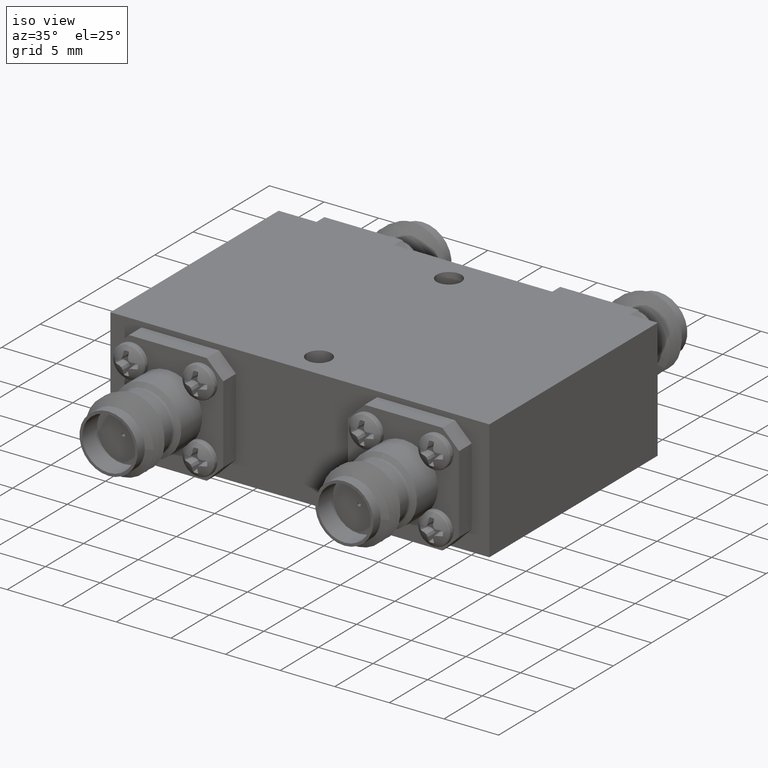
[diagram: clean part render]
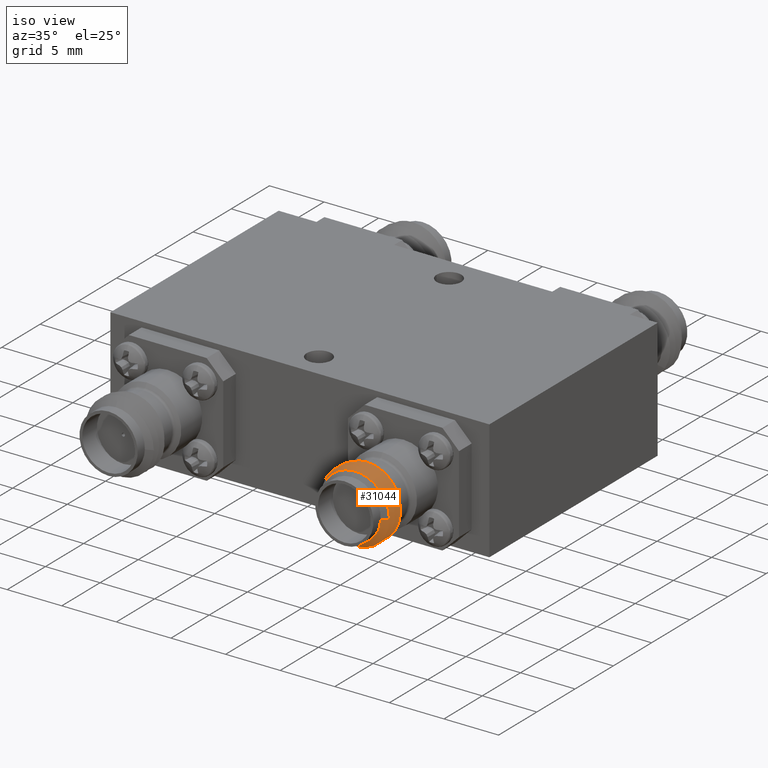
[diagram: same view with one face highlighted and labeled with its STEP entity id]
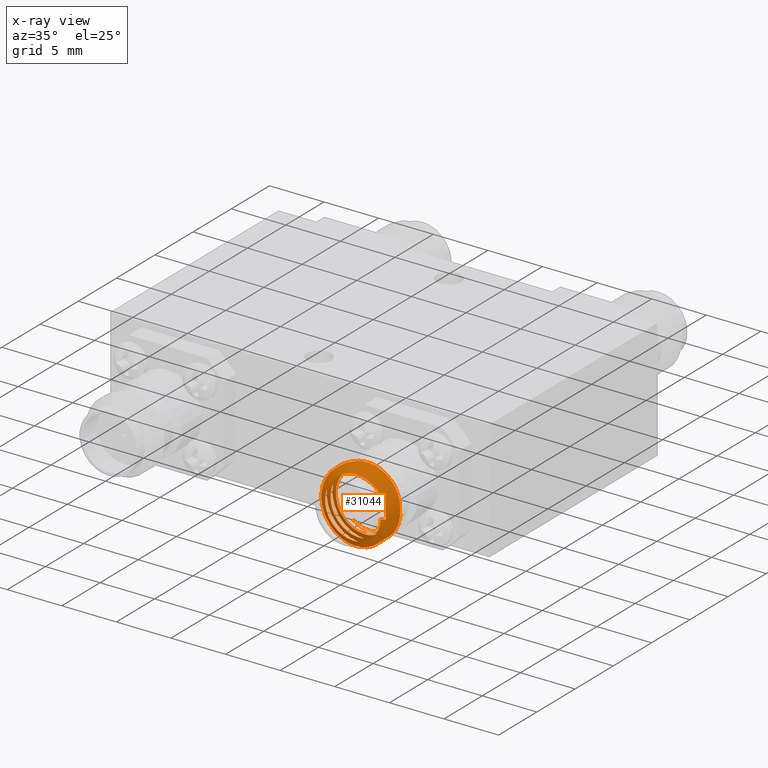
[diagram: x-ray of the same camera — body ghosted, the highlighted face saturated]
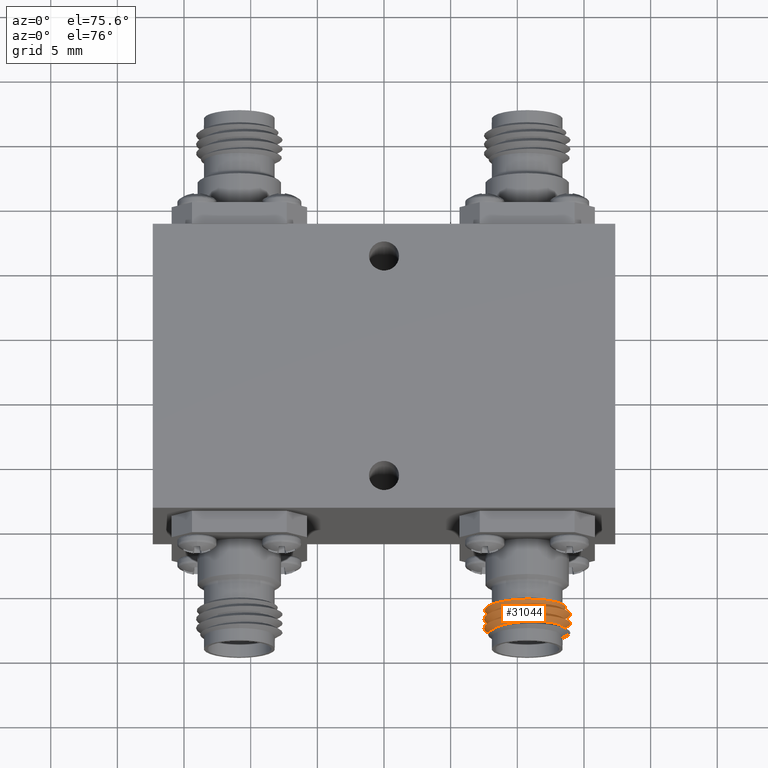
[diagram: same view with one face highlighted and labeled with its STEP entity id]
A machine part, iso view. The second image highlights one B-rep face of the part: STEP entity #31044.
The next image is the same camera in x-ray: the body ghosted, the highlighted face saturated — about 0% of this face is hidden behind the body in this view.
A second angle (auxiliary view) of the same face is appended — the face is thin or edge-on in the first view.
In plain terms, the highlighted face is a freeform B-spline surface patch.
Its self-contained STEP definition (entity closure, byte-faithful):
#55 = CARTESIAN_POINT ( 'NONE',  ( 0.4090109800733353100, -0.7082203525665050600, 0.1115354330708660700 ) ) ;
#1073 = CARTESIAN_POINT ( 'NONE',  ( 0.2991960447861482000, -0.7175615941890978200, 0.1834069502855213400 ) ) ;
#1136 = CARTESIAN_POINT ( 'NONE',  ( 0.3845811687613657800, -0.6828393719668756100, 0.3593009920750886400 ) ) ;
#1174 = EDGE_CURVE ( 'NONE', #16966, #24991, #51171, .T. ) ;
#1175 = ORIENTED_EDGE ( 'NONE', *, *, #46614, .T. ) ;
#1761 = CARTESIAN_POINT ( 'NONE',  ( 0.3956583547328388900, -0.7910258355656445400, 0.1151132993379510400 ) ) ;
#1958 = CARTESIAN_POINT ( 'NONE',  ( 0.3031208959078919900, -0.6893084291428547300, 0.2516327524470650100 ) ) ;
#2086 = EDGE_CURVE ( 'NONE', #5817, #60886, #52104, .T. ) ;
#2549 = ORIENTED_EDGE ( 'NONE', *, *, #47065, .F. ) ;
#2618 = EDGE_CURVE ( 'NONE', #53281, #70374, #48130, .T. ) ;
#2954 = CARTESIAN_POINT ( 'NONE',  ( 0.4302462033737201000, -0.6863100547194084200, 0.3359689577264929900 ) ) ;
#3264 = CARTESIAN_POINT ( 'NONE',  ( 0.5399468380942604700, -0.7701925022323111700, 0.1851549552953935000 ) ) ;
#3471 = CARTESIAN_POINT ( 'NONE',  ( 0.5357627844557846200, -0.6833936519521796000, 0.2361727180647525700 ) ) ;
#3515 = CARTESIAN_POINT ( 'NONE',  ( 0.5464732465524340100, -0.7592282608557645600, 0.2496639158562108400 ) ) ;
#3696 = CARTESIAN_POINT ( 'NONE',  ( 0.3793423982189531000, -0.7523280669959941900, 0.3215354330708660200 ) ) ;
#3792 = CARTESIAN_POINT ( 'NONE',  ( 0.4542144509453235900, -0.7655628726026816300, 0.09942306045021474800 ) ) ;
#4074 = CARTESIAN_POINT ( 'NONE',  ( 0.4542144509453235900, -0.6822295392693482600, 0.09942306045021474800 ) ) ;
#4297 = CARTESIAN_POINT ( 'NONE',  ( 0.4376646719017464600, -0.6798121258215007500, 0.1083566514104201700 ) ) ;
#4346 = VERTEX_POINT ( 'NONE', #24486 ) ;
#4347 = CARTESIAN_POINT ( 'NONE',  ( 0.2800693063321855200, -0.7708023349298386300, 0.2547897297876325900 ) ) ;
#4532 = EDGE_CURVE ( 'NONE', #16966, #48274, #55350, .T. ) ;
#5447 = ORIENTED_EDGE ( 'NONE', *, *, #74844, .T. ) ;
#5694 = CARTESIAN_POINT ( 'NONE',  ( 0.3323252375467756200, -0.7129319645594683900, 0.3070453609313607600 ) ) ;
#5817 = VERTEX_POINT ( 'NONE', #60721 ) ;
#5968 = CARTESIAN_POINT ( 'NONE',  ( 0.4610881225772164900, -0.6967282608557646700, 0.07376987406664334300 ) ) ;
#6299 = CARTESIAN_POINT ( 'NONE',  ( 0.5464732465524340100, -0.7036727053002090900, 0.2496639158562108400 ) ) ;
#6567 = CARTESIAN_POINT ( 'NONE',  ( 0.3183227832401108700, -0.6643208534483572300, 0.1120241707834101100 ) ) ;
#6620 = B_SPLINE_CURVE_WITH_KNOTS ( 'NONE', 3,
 ( #68225, #35723, #12007, #42281, #67960, #48509, #49320, #55626, #17725, #55368 ),
 .UNSPECIFIED., .F., .F.,
 ( 4, 2, 2, 2, 4 ),
 ( 0.01584325104450797300, 0.01631522288888693400, 0.01678719473326589800, 0.01725916657764486200, 0.01773113842202382300 ),
 .UNSPECIFIED. ) ;
#7295 =( BOUNDED_CURVE ( )  B_SPLINE_CURVE ( 2, ( #54451, #72783, #41625, #35617, #47347, #60187, #17073, #35343, #54184 ),
 .UNSPECIFIED., .F., .F. ) 
 B_SPLINE_CURVE_WITH_KNOTS ( ( 3, 2, 2, 2, 3 ),
 ( 0.5248554726565972700, 0.5333333333333333300, 0.5666666666666666500, 0.5999999999999999800, 0.6248554726565971300 ),
 .UNSPECIFIED. ) 
 CURVE ( )  GEOMETRIC_REPRESENTATION_ITEM ( )  RATIONAL_B_SPLINE_CURVE ( ( 0.9491836739122827500, 0.9659254611718750500, 1.000000000000000000, 0.8660254037844387100, 1.000000000000000000, 0.8660254037844387100, 1.000000000000000000, 0.9000999426125641000, 0.9491836739122823100 ) ) 
 REPRESENTATION_ITEM ( '' )  );
#7845 = CARTESIAN_POINT ( 'NONE',  ( 0.4090109800733353100, -0.7359981303442828500, 0.1115354330708660700 ) ) ;
#8363 = CARTESIAN_POINT ( 'NONE',  ( 0.4228346456692911900, -0.6795040855815611700, 0.1088901927567706000 ) ) ;
#8892 = CARTESIAN_POINT ( 'NONE',  ( 0.4663268931196292200, -0.7662169558848830300, 0.1115354330708661800 ) ) ;
#9215 = CARTESIAN_POINT ( 'NONE',  ( 0.5136952258206402000, -0.6816078304381036900, 0.1518472352687492700 ) ) ;
#9436 = CARTESIAN_POINT ( 'NONE',  ( 0.4228346456692909100, -0.7504757602334200000, 0.3215354330708661300 ) ) ;
#9528 = CARTESIAN_POINT ( 'NONE',  ( 0.4970806445197921100, -0.7123221318619408200, 0.1422890078728041000 ) ) ;
#9745 = CARTESIAN_POINT ( 'NONE',  ( 0.5365609499033876500, -0.6832556676292478300, 0.2288077795482604300 ) ) ;
#9797 = CARTESIAN_POINT ( 'NONE',  ( 0.4610881225772164300, -0.7522838164113200300, 0.07376987406664352300 ) ) ;
#9961 = EDGE_LOOP ( 'NONE', ( #26629, #73972, #15266, #78333, #75722, #66923, #70219, #5447, #1175, #60197, #2549, #41418, #24442 ) ) ;
#10007 = CARTESIAN_POINT ( 'NONE',  ( 0.5360019312078235800, -0.6828158327080139400, 0.2063673380078975000 ) ) ;
#10062 = CARTESIAN_POINT ( 'NONE',  ( 0.4542144509453235900, -0.7100073170471261600, 0.09942306045021474800 ) ) ;
#10320 = CARTESIAN_POINT ( 'NONE',  ( 0.3214123558823379100, -0.6752850948249037300, 0.1893597245360130200 ) ) ;
#10337 = CARTESIAN_POINT ( 'NONE',  ( 0.3840194886702671400, -0.6871971364338394000, 0.3312450125655904700 ) ) ;
#10585 = CARTESIAN_POINT ( 'NONE',  ( 0.3845811687613657800, -0.7661727053002089800, 0.3593009920750886400 ) ) ;
#11158 = CARTESIAN_POINT ( 'NONE',  ( 0.5482002354201147600, -0.7561426780691572500, 0.1608814866829417200 ) ) ;
#11231 = CARTESIAN_POINT ( 'NONE',  ( 0.5277024049750794800, -0.7711648769093174500, 0.2112673159325286500 ) ) ;
#11340 = CARTESIAN_POINT ( 'NONE',  ( 0.4926275787050082300, -0.6810522431930918800, 0.1307666803959265100 ) ) ;
#11700 =( BOUNDED_SURFACE ( )  B_SPLINE_SURFACE ( 1, 2, ( 
 ( #75962, #76245, #1761, #38787, #26521, #76518, #39064, #64182, #40586, #34573, #72531, #3264, #72812, #3792, #28840, #35369, #35106, #53947, #59423, #54214, #16836, #78818, #73078, #66228, #16313, #29101, #53148, #29369, #28297, #16558, #59957, #46831, #28557, #15780, #72274, #47376, #9528, #10062, #41115, #22060, #41386, #22846, #65697, #60480, #79085, #53677, #41656, #66786, #34845, #4074, #22592, #47633, #10320, #60218, #23120 ),
 ( #16040, #66505, #72002, #78302, #78544, #4347, #47904, #10585, #35645, #40849, #3515, #47097, #59691, #9797, #53408, #22324, #65966, #29624, #43251, #55805, #63994, #47849, #12678, #56294, #28311, #62389, #51625, #56666, #1073, #20088, #38159, #69577, #31899, #13367, #6299, #63285, #74798, #62738, #62461, #63559, #25908, #44717, #31079, #1136, #56446, #19914, #69301, #75869, #50162, #56978, #44174, #6567, #56183, #12836, #13101 ) ),
 .UNSPECIFIED., .F., .F., .T. ) 
 B_SPLINE_SURFACE_WITH_KNOTS ( ( 2, 2 ),
 ( 3, 2, 2, 2, 2, 2, 2, 2, 2, 2, 2, 2, 2, 2, 2, 2, 2, 2, 2, 2, 2, 2, 2, 2, 2, 2, 2, 3 ),
 ( 0.0000000000000000000, 1.000000000000000000 ),
 ( 0.0000000000000000000, 0.03333333333333333300, 0.06666666666666666600, 0.1000000000000000100, 0.1333333333333333300, 0.1666666666666666600, 0.2000000000000000100, 0.2333333333333333400, 0.2666666666666666600, 0.2999999999999999900, 0.3333333333333333100, 0.3666666666666666400, 0.4000000000000000200, 0.4333333333333333500, 0.4666666666666666700, 0.5000000000000000000, 0.5333333333333333300, 0.5666666666666666500, 0.5999999999999999800, 0.6333333333333333000, 0.6666666666666666300, 0.6999999999999999600, 0.7333333333333332800, 0.7666666666666667200, 0.8000000000000000400, 0.8333333333333333700, 0.8666666666666667000, 0.8785039370014849900 ),
 .UNSPECIFIED. ) 
 GEOMETRIC_REPRESENTATION_ITEM ( )  RATIONAL_B_SPLINE_SURFACE ( (
 ( 1.000000000000000000, 0.8660254037844387100, 1.000000000000000000, 0.8660254037844387100, 1.000000000000000000, 0.8660254037844387100, 1.000000000000000000, 0.8660254037844387100, 1.000000000000000000, 0.8660254037844387100, 1.000000000000000000, 0.8660254037844387100, 1.000000000000000000, 0.8660254037844387100, 1.000000000000000000, 0.8660254037844387100, 1.000000000000000000, 0.8660254037844387100, 1.000000000000000000, 0.8660254037844387100, 1.000000000000000000, 0.8660254037844387100, 1.000000000000000000, 0.8660254037844387100, 1.000000000000000000, 0.8660254037844387100, 1.000000000000000000, 0.8660254037844387100, 1.000000000000000000, 0.8660254037844387100, 1.000000000000000000, 0.8660254037844387100, 1.000000000000000000, 0.8660254037844387100, 1.000000000000000000, 0.8660254037844387100, 1.000000000000000000, 0.8660254037844387100, 1.000000000000000000, 0.8660254037844387100, 1.000000000000000000, 0.8660254037844387100, 1.000000000000000000, 0.8660254037844387100, 1.000000000000000000, 0.8660254037844387100, 1.000000000000000000, 0.8660254037844387100, 1.000000000000000000, 0.8660254037844387100, 1.000000000000000000, 0.8660254037844387100, 1.000000000000000000, 0.9524231945979483300, 0.9386371596285643100),
 ( 1.000000000000000000, 0.8660254037844387100, 1.000000000000000000, 0.8660254037844387100, 1.000000000000000000, 0.8660254037844387100, 1.000000000000000000, 0.8660254037844387100, 1.000000000000000000, 0.8660254037844387100, 1.000000000000000000, 0.8660254037844387100, 1.000000000000000000, 0.8660254037844387100, 1.000000000000000000, 0.8660254037844387100, 1.000000000000000000, 0.8660254037844387100, 1.000000000000000000, 0.8660254037844387100, 1.000000000000000000, 0.8660254037844387100, 1.000000000000000000, 0.8660254037844387100, 1.000000000000000000, 0.8660254037844387100, 1.000000000000000000, 0.8660254037844387100, 1.000000000000000000, 0.8660254037844387100, 1.000000000000000000, 0.8660254037844387100, 1.000000000000000000, 0.8660254037844387100, 1.000000000000000000, 0.8660254037844387100, 1.000000000000000000, 0.8660254037844387100, 1.000000000000000000, 0.8660254037844387100, 1.000000000000000000, 0.8660254037844387100, 1.000000000000000000, 0.8660254037844387100, 1.000000000000000000, 0.8660254037844387100, 1.000000000000000000, 0.8660254037844387100, 1.000000000000000000, 0.8660254037844387100, 1.000000000000000000, 0.8660254037844387100, 1.000000000000000000, 0.9524231945979483300, 0.9386371596285643100) ) ) 
 REPRESENTATION_ITEM ( '' )  SURFACE ( )  );
#12007 = CARTESIAN_POINT ( 'NONE',  ( 0.4103908191786711500, -0.6792478074147823000, 0.1098753014152097400 ) ) ;
#12678 = CARTESIAN_POINT ( 'NONE',  ( 0.5464732465524340100, -0.7314504830779867700, 0.2496639158562108400 ) ) ;
#12836 = CARTESIAN_POINT ( 'NONE',  ( 0.2930199435203966800, -0.6612585755602028400, 0.2064567387215896200 ) ) ;
#13101 = CARTESIAN_POINT ( 'NONE',  ( 0.2955643502271218500, -0.6604058231542150300, 0.2301835793941928200 ) ) ;
#13367 = CARTESIAN_POINT ( 'NONE',  ( 0.5273465080984713900, -0.7059875201150238600, 0.3210466953583220900 ) ) ;
#13563 =( BOUNDED_CURVE ( )  B_SPLINE_CURVE ( 2, ( #60074, #65292, #65553, #41506, #34175, #46690, #53800, #16161, #28163 ),
 .UNSPECIFIED., .F., .F. ) 
 B_SPLINE_CURVE_WITH_KNOTS ( ( 3, 2, 2, 2, 3 ),
 ( 0.7248554726565972200, 0.7333333333333332800, 0.7666666666666667200, 0.8000000000000000400, 0.8248554726565972000 ),
 .UNSPECIFIED. ) 
 CURVE ( )  GEOMETRIC_REPRESENTATION_ITEM ( )  RATIONAL_B_SPLINE_CURVE ( ( 0.9491836739122827500, 0.9659254611718750500, 1.000000000000000000, 0.8660254037844387100, 1.000000000000000000, 0.8660254037844387100, 1.000000000000000000, 0.9000999426125641000, 0.9491836739122823100 ) ) 
 REPRESENTATION_ITEM ( '' )  );
#14103 = CARTESIAN_POINT ( 'NONE',  ( 0.3371022585203541900, -0.7331554651952740800, 0.1308035382256873800 ) ) ;
#14209 = CARTESIAN_POINT ( 'NONE',  ( 0.3175213573931962000, -0.6886869665098999100, 0.2821124938331390800 ) ) ;
#14472 = CARTESIAN_POINT ( 'NONE',  ( 0.3787041665657955300, -0.6873035976021704100, 0.3295067275842557500 ) ) ;
#14620 = CARTESIAN_POINT ( 'NONE',  ( 0.5085670328182280200, -0.7470443540841631400, 0.3022673279160448300 ) ) ;
#15213 = CARTESIAN_POINT ( 'NONE',  ( 0.4228346456687282500, -0.6864485300260163600, 0.3362088039930968800 ) ) ;
#15266 = ORIENTED_EDGE ( 'NONE', *, *, #33947, .T. ) ;
#15356 = FACE_OUTER_BOUND ( 'NONE', #9961, .T. ) ;
#15466 = CARTESIAN_POINT ( 'NONE',  ( 0.4983665489984913100, -0.6811878513921383300, 0.1354534948325968900 ) ) ;
#15780 = CARTESIAN_POINT ( 'NONE',  ( 0.5085670328182280200, -0.7192665763063852400, 0.3022673279160447700 ) ) ;
#15991 = CARTESIAN_POINT ( 'NONE',  ( 0.5219073847737004700, -0.6819026420548615100, 0.1642026917239471400 ) ) ;
#16040 = CARTESIAN_POINT ( 'NONE',  ( 0.5133440537918065900, -0.7823764090039127000, 0.1260255052103714800 ) ) ;
#16161 = CARTESIAN_POINT ( 'NONE',  ( 0.4663268931196292200, -0.6828836225515497700, 0.1115354330708661800 ) ) ;
#16258 = CARTESIAN_POINT ( 'NONE',  ( 0.4924022912744668900, -0.6850978250194910100, 0.3121760042178716200 ) ) ;
#16313 = CARTESIAN_POINT ( 'NONE',  ( 0.4970806445197921100, -0.7400999096397185000, 0.1422890078728041000 ) ) ;
#16387 = CARTESIAN_POINT ( 'NONE',  ( 0.4228346456692911900, -0.7643646491223089500, 0.1115354330708660900 ) ) ;
#16411 = CARTESIAN_POINT ( 'NONE',  ( 0.5506734379658710900, -0.7578858207179559600, 0.2101133474165099700 ) ) ;
#16474 = CARTESIAN_POINT ( 'NONE',  ( 0.4228346456687282500, -0.6864485300260163600, 0.3362088039930968800 ) ) ;
#16558 = CARTESIAN_POINT ( 'NONE',  ( 0.3057224532443216800, -0.7285258355656445400, 0.2479159108463386300 ) ) ;
#16836 = CARTESIAN_POINT ( 'NONE',  ( 0.4500109366057433200, -0.7493591688989778000, 0.3179575668037811200 ) ) ;
#16966 = VERTEX_POINT ( 'NONE', #19730 ) ;
#17053 = CARTESIAN_POINT ( 'NONE',  ( 0.4228346456692911900, -0.6795040855815611700, 0.1088901927567706000 ) ) ;
#17073 = CARTESIAN_POINT ( 'NONE',  ( 0.4970806445197921100, -0.7123221318619408200, 0.1422890078728041000 ) ) ;
#17412 = CARTESIAN_POINT ( 'NONE',  ( 0.3897054529086636500, -0.7499690015965053700, 0.09289702242502662100 ) ) ;
#17681 = CARTESIAN_POINT ( 'NONE',  ( 0.4559638384299185600, -0.7360801127076163100, 0.3401738437167055000 ) ) ;
#17725 = CARTESIAN_POINT ( 'NONE',  ( 0.3595183062356342400, -0.6781150132824007600, 0.1322390149960118400 ) ) ;
#17958 = CARTESIAN_POINT ( 'NONE',  ( 0.3845811687613658300, -0.7383949275224313000, 0.3593009920750887500 ) ) ;
#18276 = CARTESIAN_POINT ( 'NONE',  ( 0.3371022585203541900, -0.7053776874174964000, 0.1308035382256873800 ) ) ;
#18541 = CARTESIAN_POINT ( 'NONE',  ( 0.4228346456692913500, -0.6810313157889755800, 0.1115354330708660800 ) ) ;
#18712 =( BOUNDED_CURVE ( )  B_SPLINE_CURVE ( 2, ( #59071, #72171, #47532, #41018, #46741, #71915, #78211, #3696, #9436 ),
 .UNSPECIFIED., .F., .T. ) 
 B_SPLINE_CURVE_WITH_KNOTS ( ( 3, 2, 2, 2, 3 ),
 ( 0.2248554726565971900, 0.2333333333333333400, 0.2666666666666666600, 0.2999999999999999900, 0.3248554726565971400 ),
 .UNSPECIFIED. ) 
 CURVE ( )  GEOMETRIC_REPRESENTATION_ITEM ( )  RATIONAL_B_SPLINE_CURVE ( ( 0.9491836739122823100, 0.9659254611718747200, 1.000000000000000000, 0.8660254037844387100, 1.000000000000000000, 0.8660254037844387100, 1.000000000000000000, 0.9000999426125641000, 0.9491836739122823100 ) ) 
 REPRESENTATION_ITEM ( '' )  );
#18775 = CARTESIAN_POINT ( 'NONE',  ( 0.3173616299860348400, -0.6912559115653119600, 0.1440134159817119100 ) ) ;
#19730 = CARTESIAN_POINT ( 'NONE',  ( 0.5277024049750794800, -0.7711648769093174500, 0.2112673159325286500 ) ) ;
#19815 = VERTEX_POINT ( 'NONE', #61814 ) ;
#19914 = CARTESIAN_POINT ( 'NONE',  ( 0.5273465080984713900, -0.6782097423372460700, 0.3210466953583220900 ) ) ;
#20088 = CARTESIAN_POINT ( 'NONE',  ( 0.2800693063321855200, -0.7152467793742831600, 0.2547897297876325900 ) ) ;
#20372 = CARTESIAN_POINT ( 'NONE',  ( 0.3057224532443216800, -0.7285258355656445400, 0.2479159108463386000 ) ) ;
#20479 = CARTESIAN_POINT ( 'NONE',  ( 0.3486504298367459900, -0.6879259415242319200, 0.3143243911649104000 ) ) ;
#20482 = CARTESIAN_POINT ( 'NONE',  ( 0.3956583547328388900, -0.6799147244545333800, 0.1151132993379510400 ) ) ;
#20629 = CARTESIAN_POINT ( 'NONE',  ( 0.5399468380942604700, -0.7424147244545334900, 0.1851549552953935300 ) ) ;
#20656 = CARTESIAN_POINT ( 'NONE',  ( 0.3793423982189532700, -0.7245502892182164000, 0.3215354330708661300 ) ) ;
#21282 = CARTESIAN_POINT ( 'NONE',  ( 0.2966554492698985100, -0.6899286802284375600, 0.2185421764595973400 ) ) ;
#21490 = CARTESIAN_POINT ( 'NONE',  ( 0.5253953683682169900, -0.6820533806887461000, 0.1707610565226598000 ) ) ;
#21803 =( BOUNDED_CURVE ( )  B_SPLINE_CURVE ( 2, ( #57704, #76321, #45675, #14620, #58796, #20629, #26597, #64265, #33401 ),
 .UNSPECIFIED., .F., .F. ) 
 B_SPLINE_CURVE_WITH_KNOTS ( ( 3, 2, 2, 2, 3 ),
 ( 0.3248554726565971400, 0.3333333333333333100, 0.3666666666666666400, 0.4000000000000000200, 0.4248554726565971800 ),
 .UNSPECIFIED. ) 
 CURVE ( )  GEOMETRIC_REPRESENTATION_ITEM ( )  RATIONAL_B_SPLINE_CURVE ( ( 0.9491836739122823100, 0.9659254611718746100, 1.000000000000000000, 0.8660254037844387100, 1.000000000000000000, 0.8660254037844387100, 1.000000000000000000, 0.9000999426125641000, 0.9491836739122823100 ) ) 
 REPRESENTATION_ITEM ( '' )  );
#21889 = VERTEX_POINT ( 'NONE', #52746 ) ;
#22060 = CARTESIAN_POINT ( 'NONE',  ( 0.3371022585203541900, -0.7053776874174964000, 0.1308035382256873800 ) ) ;
#22324 = CARTESIAN_POINT ( 'NONE',  ( 0.3183227832401108700, -0.7476541867816904900, 0.1120241707834101100 ) ) ;
#22540 = CARTESIAN_POINT ( 'NONE',  ( 0.5246777222176571800, -0.6840710452845539800, 0.2716372442649541700 ) ) ;
#22592 = CARTESIAN_POINT ( 'NONE',  ( 0.3956583547328388900, -0.6799147244545333800, 0.1151132993379510400 ) ) ;
#22846 = CARTESIAN_POINT ( 'NONE',  ( 0.3057224532443216800, -0.7007480577878668600, 0.2479159108463386300 ) ) ;
#23120 = CARTESIAN_POINT ( 'NONE',  ( 0.3184332314393866200, -0.6736848793455764200, 0.2277311781017200000 ) ) ;
#23964 = CARTESIAN_POINT ( 'NONE',  ( 0.3183227832401106500, -0.7476541867816908200, 0.1120241707834099700 ) ) ;
#24237 = CARTESIAN_POINT ( 'NONE',  ( 0.3897054529086636500, -0.7221912238187275800, 0.09289702242502662100 ) ) ;
#24442 = ORIENTED_EDGE ( 'NONE', *, *, #66909, .F. ) ;
#24486 = CARTESIAN_POINT ( 'NONE',  ( 0.4228346456692913500, -0.7226979824556423200, 0.3215354330708661300 ) ) ;
#24991 = VERTEX_POINT ( 'NONE', #16387 ) ;
#25196 = EDGE_CURVE ( 'NONE', #61212, #21889, #6620, .T. ) ;
#25908 = CARTESIAN_POINT ( 'NONE',  ( 0.2991960447861482000, -0.6897838164113201400, 0.1834069502855213400 ) ) ;
#26521 = CARTESIAN_POINT ( 'NONE',  ( 0.3214123558823379100, -0.7863962059360148900, 0.1893597245360130200 ) ) ;
#26597 = CARTESIAN_POINT ( 'NONE',  ( 0.4970806445197921100, -0.7400999096397185000, 0.1422890078728041000 ) ) ;
#26629 = ORIENTED_EDGE ( 'NONE', *, *, #4532, .F. ) ;
#26726 = CARTESIAN_POINT ( 'NONE',  ( 0.3070909145624314800, -0.6891006214606277800, 0.2621096276880377500 ) ) ;
#26729 = CARTESIAN_POINT ( 'NONE',  ( 0.3728671760306835300, -0.6790137532231965700, 0.1212202474014332200 ) ) ;
#27266 = CARTESIAN_POINT ( 'NONE',  ( 0.2977101187323952800, -0.6897219606487027300, 0.2299426770081627300 ) ) ;
#27999 = CARTESIAN_POINT ( 'NONE',  ( 0.4593667530622939600, -0.6857891008603197400, 0.3295390432095368100 ) ) ;
#28163 = CARTESIAN_POINT ( 'NONE',  ( 0.4228346456692913500, -0.6810313157889755800, 0.1115354330708660800 ) ) ;
#28251 = CARTESIAN_POINT ( 'NONE',  ( 0.5080739142435197800, -0.6846576603652776400, 0.2963982175953779900 ) ) ;
#28297 = CARTESIAN_POINT ( 'NONE',  ( 0.3214123558823379100, -0.7308406503804592000, 0.1893597245360130200 ) ) ;
#28311 = CARTESIAN_POINT ( 'NONE',  ( 0.5133440537918065900, -0.7268208534483571200, 0.1260255052103714800 ) ) ;
#28557 = CARTESIAN_POINT ( 'NONE',  ( 0.4500109366057433200, -0.7215813911212001200, 0.3179575668037811200 ) ) ;
#28564 = CARTESIAN_POINT ( 'NONE',  ( 0.4228346456692913500, -0.6949202046778644200, 0.3215354330708661300 ) ) ;
#28840 = CARTESIAN_POINT ( 'NONE',  ( 0.3956583547328388900, -0.7632480577878667500, 0.1151132993379510400 ) ) ;
#29101 = CARTESIAN_POINT ( 'NONE',  ( 0.4542144509453235900, -0.7377850948249037300, 0.09942306045021474800 ) ) ;
#29369 = CARTESIAN_POINT ( 'NONE',  ( 0.3371022585203541900, -0.7331554651952740800, 0.1308035382256873800 ) ) ;
#29582 = CARTESIAN_POINT ( 'NONE',  ( 0.4801875343036659000, -0.6807587357688976700, 0.1225883016863171800 ) ) ;
#29624 = CARTESIAN_POINT ( 'NONE',  ( 0.2800693063321855200, -0.7430245571520608400, 0.2547897297876325900 ) ) ;
#31044 = ADVANCED_FACE ( 'NONE', ( #15356 ), #11700, .F. ) ;
#31079 = CARTESIAN_POINT ( 'NONE',  ( 0.3323252375467756800, -0.6851541867816904900, 0.3070453609313606400 ) ) ;
#31899 = CARTESIAN_POINT ( 'NONE',  ( 0.4559638384299185600, -0.7083023349298386300, 0.3401738437167053400 ) ) ;
#32988 = CARTESIAN_POINT ( 'NONE',  ( 0.3682794764195678700, -0.6875155301543233200, 0.3252682571631949100 ) ) ;
#33401 = CARTESIAN_POINT ( 'NONE',  ( 0.4228346456692913500, -0.7365868713445310500, 0.1115354330708660800 ) ) ;
#33947 = EDGE_CURVE ( 'NONE', #24991, #44171, #18712, .T. ) ;
#34067 = CARTESIAN_POINT ( 'NONE',  ( 0.3112327769996278100, -0.6910545336845026500, 0.1535425854005062200 ) ) ;
#34175 = CARTESIAN_POINT ( 'NONE',  ( 0.5242569354562443000, -0.6891739837137926800, 0.2437111416057191900 ) ) ;
#34573 = CARTESIAN_POINT ( 'NONE',  ( 0.5085670328182280200, -0.7748221318619408200, 0.3022673279160447700 ) ) ;
#34845 = CARTESIAN_POINT ( 'NONE',  ( 0.4970806445197921100, -0.6845443540841630300, 0.1422890078728041000 ) ) ;
#35106 = CARTESIAN_POINT ( 'NONE',  ( 0.3214123558823379100, -0.7586184281582371000, 0.1893597245360130200 ) ) ;
#35122 = CARTESIAN_POINT ( 'NONE',  ( 0.4228346456687282500, -0.6864485300260163600, 0.3362088039930968800 ) ) ;
#35343 = CARTESIAN_POINT ( 'NONE',  ( 0.4663268931196292200, -0.7106614003293276700, 0.1115354330708661800 ) ) ;
#35369 = CARTESIAN_POINT ( 'NONE',  ( 0.3371022585203541900, -0.7609332429730519800, 0.1308035382256873800 ) ) ;
#35617 = CARTESIAN_POINT ( 'NONE',  ( 0.5085670328182280200, -0.7192665763063852400, 0.3022673279160448300 ) ) ;
#35645 = CARTESIAN_POINT ( 'NONE',  ( 0.4559638384299185600, -0.7638578904853942100, 0.3401738437167053400 ) ) ;
#35723 = CARTESIAN_POINT ( 'NONE',  ( 0.4166360456283588200, -0.6793753320504504200, 0.1091132004143087300 ) ) ;
#36217 = CARTESIAN_POINT ( 'NONE',  ( 0.5133440537918065900, -0.7545986312261350200, 0.1260255052103713700 ) ) ;
#36755 = CARTESIAN_POINT ( 'NONE',  ( 0.5133440537918065900, -0.7268208534483572300, 0.1260255052103713700 ) ) ;
#37888 = CARTESIAN_POINT ( 'NONE',  ( 0.4228346456692913500, -0.7088090935667535900, 0.1115354330708660800 ) ) ;
#38159 = CARTESIAN_POINT ( 'NONE',  ( 0.3323252375467756800, -0.7129319645594682800, 0.3070453609313606400 ) ) ;
#38432 = EDGE_CURVE ( 'NONE', #19815, #4346, #38550, .T. ) ;
#38550 =( BOUNDED_CURVE ( )  B_SPLINE_CURVE ( 2, ( #46228, #7845, #51423, #14103, #57729, #20372, #64009, #20656, #58272 ),
 .UNSPECIFIED., .F., .T. ) 
 B_SPLINE_CURVE_WITH_KNOTS ( ( 3, 2, 2, 2, 3 ),
 ( 0.4248554726565971800, 0.4333333333333333500, 0.4666666666666666700, 0.5000000000000000000, 0.5248554726565972700 ),
 .UNSPECIFIED. ) 
 CURVE ( )  GEOMETRIC_REPRESENTATION_ITEM ( )  RATIONAL_B_SPLINE_CURVE ( ( 0.9491836739122823100, 0.9659254611718746100, 1.000000000000000000, 0.8660254037844387100, 1.000000000000000000, 0.8660254037844387100, 1.000000000000000000, 0.9000999426125636500, 0.9491836739122827500 ) ) 
 REPRESENTATION_ITEM ( '' )  );
#38787 = CARTESIAN_POINT ( 'NONE',  ( 0.3371022585203541900, -0.7887110207508298800, 0.1308035382256873800 ) ) ;
#39064 = CARTESIAN_POINT ( 'NONE',  ( 0.3485886468187901500, -0.7817665763063852400, 0.2907818582689280000 ) ) ;
#39257 = CARTESIAN_POINT ( 'NONE',  ( 0.2973678117242967200, -0.6902189684004052000, 0.2018173559012186600 ) ) ;
#40057 = CARTESIAN_POINT ( 'NONE',  ( 0.3014979413264923800, -0.6894120322958085000, 0.2462889124369900800 ) ) ;
#40586 = CARTESIAN_POINT ( 'NONE',  ( 0.4500109366057433200, -0.7771369466767555900, 0.3179575668037811200 ) ) ;
#40849 = CARTESIAN_POINT ( 'NONE',  ( 0.5273465080984713900, -0.7615430756705794400, 0.3210466953583220900 ) ) ;
#41018 = CARTESIAN_POINT ( 'NONE',  ( 0.3371022585203541900, -0.7609332429730519800, 0.1308035382256873800 ) ) ;
#41115 = CARTESIAN_POINT ( 'NONE',  ( 0.3956583547328388900, -0.7076925022323111700, 0.1151132993379510400 ) ) ;
#41386 = CARTESIAN_POINT ( 'NONE',  ( 0.3214123558823379100, -0.7030628726026815200, 0.1893597245360130200 ) ) ;
#41418 = ORIENTED_EDGE ( 'NONE', *, *, #2618, .F. ) ;
#41506 = CARTESIAN_POINT ( 'NONE',  ( 0.5085670328182280200, -0.6914887985286074500, 0.3022673279160448300 ) ) ;
#41625 = CARTESIAN_POINT ( 'NONE',  ( 0.4500109366057433200, -0.7215813911212001200, 0.3179575668037811200 ) ) ;
#41656 = CARTESIAN_POINT ( 'NONE',  ( 0.5242569354562443000, -0.6891739837137926800, 0.2437111416057191900 ) ) ;
#42281 = CARTESIAN_POINT ( 'NONE',  ( 0.3981478915655420900, -0.6790025568367251700, 0.1124638146988049300 ) ) ;
#43019 = CARTESIAN_POINT ( 'NONE',  ( 0.2800693063321853000, -0.7152467793742831600, 0.2547897297876326500 ) ) ;
#43251 = CARTESIAN_POINT ( 'NONE',  ( 0.3323252375467756800, -0.7407097423372459600, 0.3070453609313606400 ) ) ;
#44171 = VERTEX_POINT ( 'NONE', #60151 ) ;
#44174 = CARTESIAN_POINT ( 'NONE',  ( 0.3897054529086636500, -0.6666356682631720000, 0.09289702242502677300 ) ) ;
#44717 = CARTESIAN_POINT ( 'NONE',  ( 0.2800693063321855200, -0.6874690015965054800, 0.2547897297876325900 ) ) ;
#45535 = CARTESIAN_POINT ( 'NONE',  ( 0.3397993464855414400, -0.6881115547029574800, 0.3073756632871640400 ) ) ;
#45675 = CARTESIAN_POINT ( 'NONE',  ( 0.4500109366057433200, -0.7493591688989778000, 0.3179575668037811200 ) ) ;
#46206 = CARTESIAN_POINT ( 'NONE',  ( 0.5277024049750794800, -0.7711648769093174500, 0.2112673159325286500 ) ) ;
#46228 = CARTESIAN_POINT ( 'NONE',  ( 0.4228346456692913500, -0.7365868713445310500, 0.1115354330708660800 ) ) ;
#46333 = CARTESIAN_POINT ( 'NONE',  ( 0.3173616299860348400, -0.6912559115653119600, 0.1440134159817119100 ) ) ;
#46514 = CARTESIAN_POINT ( 'NONE',  ( 0.5366904104888674500, -0.6829664191410365100, 0.2138842640570658700 ) ) ;
#46614 = EDGE_CURVE ( 'NONE', #59373, #21889, #62953, .T. ) ;
#46690 = CARTESIAN_POINT ( 'NONE',  ( 0.5399468380942604700, -0.6868591688989780200, 0.1851549552953935300 ) ) ;
#46741 = CARTESIAN_POINT ( 'NONE',  ( 0.3214123558823379100, -0.7586184281582371000, 0.1893597245360130200 ) ) ;
#46831 = CARTESIAN_POINT ( 'NONE',  ( 0.3914548403932586200, -0.7238962059360148900, 0.3336478056915174200 ) ) ;
#46845 = CARTESIAN_POINT ( 'NONE',  ( 0.4002676767034817900, -0.6868762282249008000, 0.3353418319872636900 ) ) ;
#47048 = CARTESIAN_POINT ( 'NONE',  ( 0.5310864548627752800, -0.6823615813370627100, 0.1846690477595609200 ) ) ;
#47065 = EDGE_CURVE ( 'NONE', #70374, #61212, #53186, .T. ) ;
#47097 = CARTESIAN_POINT ( 'NONE',  ( 0.5655999850063966300, -0.7569134460409497900, 0.1782811363540995900 ) ) ;
#47323 = CARTESIAN_POINT ( 'NONE',  ( 0.5128572227789937000, -0.6845080671242418400, 0.2905633131998158200 ) ) ;
#47347 = CARTESIAN_POINT ( 'NONE',  ( 0.5242569354562443000, -0.7169517614915704700, 0.2437111416057191900 ) ) ;
#47376 = CARTESIAN_POINT ( 'NONE',  ( 0.5399468380942604700, -0.7146369466767558100, 0.1851549552953935000 ) ) ;
#47532 = CARTESIAN_POINT ( 'NONE',  ( 0.3956583547328388900, -0.7632480577878667500, 0.1151132993379510400 ) ) ;
#47633 = CARTESIAN_POINT ( 'NONE',  ( 0.3371022585203541900, -0.6775999096397186100, 0.1308035382256873800 ) ) ;
#47849 = CARTESIAN_POINT ( 'NONE',  ( 0.5273465080984713900, -0.7337652978928015400, 0.3210466953583220900 ) ) ;
#47904 = CARTESIAN_POINT ( 'NONE',  ( 0.3323252375467756800, -0.7684875201150237500, 0.3070453609313606400 ) ) ;
#48130 = B_SPLINE_CURVE_WITH_KNOTS ( 'NONE', 3,
 ( #46333, #34067, #77524, #58923, #51530, #58377, #39257, #21282, #27266, #40057, #1958, #26726, #77785, #14209, #57829, #45535, #20479, #64112, #32988, #14472, #10337, #46845, #78316, #35122 ),
 .UNSPECIFIED., .F., .F.,
 ( 4, 2, 2, 2, 2, 2, 2, 2, 2, 2, 2, 4 ),
 ( 0.0000000000000000000, 0.0008512232122835456900, 0.001276834818425316800, 0.001702446424567087900, 0.002553669636850630100, 0.002979281242992401200, 0.003404892849134171900, 0.004256116061417713700, 0.005107339273701255900, 0.005532950879843025700, 0.005958562485984795500, 0.006809785698268335100 ),
 .UNSPECIFIED. ) ;
#48274 = VERTEX_POINT ( 'NONE', #66693 ) ;
#48509 = CARTESIAN_POINT ( 'NONE',  ( 0.3807055931163046400, -0.6786444873463444200, 0.1188997406041229400 ) ) ;
#48739 = CARTESIAN_POINT ( 'NONE',  ( 0.2800693063321853000, -0.7430245571520609500, 0.2547897297876326500 ) ) ;
#48998 = CARTESIAN_POINT ( 'NONE',  ( 0.5655999850063968500, -0.7291356682631721100, 0.1782811363540995300 ) ) ;
#49059 = CARTESIAN_POINT ( 'NONE',  ( 0.3485886468187901500, -0.6984332429730519800, 0.2907818582689280000 ) ) ;
#49279 = CARTESIAN_POINT ( 'NONE',  ( 0.3845811687613658300, -0.7106171497446537300, 0.3593009920750887500 ) ) ;
#49320 = CARTESIAN_POINT ( 'NONE',  ( 0.3750990846119930400, -0.6785155101247428700, 0.1217601159187863800 ) ) ;
#50111 = CARTESIAN_POINT ( 'NONE',  ( 0.5273465080984715000, -0.7059875201150240800, 0.3210466953583222000 ) ) ;
#50162 = CARTESIAN_POINT ( 'NONE',  ( 0.5133440537918065900, -0.6712652978928015400, 0.1260255052103714800 ) ) ;
#51171 =( BOUNDED_CURVE ( )  B_SPLINE_CURVE ( 2, ( #46206, #77129, #52481, #8892, #64814 ),
 .UNSPECIFIED., .F., .F. ) 
 B_SPLINE_CURVE_WITH_KNOTS ( ( 3, 2, 3 ),
 ( 0.1767275469719470900, 0.2000000000000000100, 0.2248554726565971700 ),
 .UNSPECIFIED. ) 
 CURVE ( )  GEOMETRIC_REPRESENTATION_ITEM ( )  RATIONAL_B_SPLINE_CURVE ( ( 0.9435358094628345500, 0.9064624750786298700, 1.000000000000000000, 0.9000999426125641000, 0.9491836739122823100 ) ) 
 REPRESENTATION_ITEM ( '' )  );
#51423 = CARTESIAN_POINT ( 'NONE',  ( 0.3956583547328388900, -0.7354702800100888500, 0.1151132993379510400 ) ) ;
#51530 = CARTESIAN_POINT ( 'NONE',  ( 0.2999566740748603200, -0.6904966668499261700, 0.1852046925924752700 ) ) ;
#51625 = CARTESIAN_POINT ( 'NONE',  ( 0.3897054529086636500, -0.7221912238187274700, 0.09289702242502677300 ) ) ;
#52104 =( BOUNDED_CURVE ( )  B_SPLINE_CURVE ( 2, ( #37888, #55, #68501, #18276, #68236, #61654, #49059, #75055, #61920 ),
 .UNSPECIFIED., .F., .T. ) 
 B_SPLINE_CURVE_WITH_KNOTS ( ( 3, 2, 2, 2, 3 ),
 ( 0.6248554726565971300, 0.6333333333333333000, 0.6666666666666666300, 0.6999999999999999600, 0.7248554726565972200 ),
 .UNSPECIFIED. ) 
 CURVE ( )  GEOMETRIC_REPRESENTATION_ITEM ( )  RATIONAL_B_SPLINE_CURVE ( ( 0.9491836739122823100, 0.9659254611718746100, 1.000000000000000000, 0.8660254037844387100, 1.000000000000000000, 0.8660254037844387100, 1.000000000000000000, 0.9000999426125636500, 0.9491836739122827500 ) ) 
 REPRESENTATION_ITEM ( '' )  );
#52481 = CARTESIAN_POINT ( 'NONE',  ( 0.4970806445197921100, -0.7678776874174962900, 0.1422890078728041000 ) ) ;
#52746 = CARTESIAN_POINT ( 'NONE',  ( 0.3548798591015067100, -0.6779768553741469800, 0.1364907768936617100 ) ) ;
#52825 = CARTESIAN_POINT ( 'NONE',  ( 0.5327205755490428400, -0.6836569844088532500, 0.2507117192795055300 ) ) ;
#53148 = CARTESIAN_POINT ( 'NONE',  ( 0.3956583547328388900, -0.7354702800100888500, 0.1151132993379510400 ) ) ;
#53186 = B_SPLINE_CURVE_WITH_KNOTS ( 'NONE', 3,
 ( #15213, #2954, #58860, #65648, #27999, #66176, #16258, #28251, #47323, #59914, #22540, #78250, #52825, #3471, #9745, #46514, #10007, #72484, #47048, #21490, #15991, #9215, #59635, #15466, #11340, #29582, #79571, #73563, #4297, #17053 ),
 .UNSPECIFIED., .F., .F.,
 ( 4, 2, 2, 2, 2, 2, 2, 2, 2, 2, 2, 2, 2, 2, 4 ),
 ( 0.006809785698268335100, 0.007374377282408309900, 0.007938968866548285600, 0.009068152034828237000, 0.009632743618968216100, 0.01019733520310819500, 0.01076192678724817400, 0.01132651837138815400, 0.01189110995552813100, 0.01245570153966811000, 0.01302029312380808800, 0.01358488470794806700, 0.01414947629208804400, 0.01471406787622802200, 0.01584325104450797300 ),
 .UNSPECIFIED. ) ;
#53246 = EDGE_CURVE ( 'NONE', #4346, #5817, #7295, .T. ) ;
#53281 = VERTEX_POINT ( 'NONE', #79328 ) ;
#53408 = CARTESIAN_POINT ( 'NONE',  ( 0.3897054529086636500, -0.7499690015965052600, 0.09289702242502677300 ) ) ;
#53677 = CARTESIAN_POINT ( 'NONE',  ( 0.5085670328182280200, -0.6914887985286075600, 0.3022673279160447700 ) ) ;
#53800 = CARTESIAN_POINT ( 'NONE',  ( 0.4970806445197921100, -0.6845443540841630300, 0.1422890078728041000 ) ) ;
#53947 = CARTESIAN_POINT ( 'NONE',  ( 0.3057224532443216800, -0.7563036133434223300, 0.2479159108463386300 ) ) ;
#54184 = CARTESIAN_POINT ( 'NONE',  ( 0.4228346456692913500, -0.7088090935667535900, 0.1115354330708660800 ) ) ;
#54214 = CARTESIAN_POINT ( 'NONE',  ( 0.3914548403932586200, -0.7516739837137927900, 0.3336478056915174200 ) ) ;
#54451 = CARTESIAN_POINT ( 'NONE',  ( 0.4228346456692913500, -0.7226979824556423200, 0.3215354330708661300 ) ) ;
#54790 = CARTESIAN_POINT ( 'NONE',  ( 0.4610881225772164900, -0.7522838164113202500, 0.07376987406664334300 ) ) ;
#55066 = CARTESIAN_POINT ( 'NONE',  ( 0.3323252375467756200, -0.7407097423372460700, 0.3070453609313607600 ) ) ;
#55350 =( BOUNDED_CURVE ( )  B_SPLINE_CURVE ( 1, ( #11231, #16411 ),
 .UNSPECIFIED., .F., .T. ) 
 B_SPLINE_CURVE_WITH_KNOTS ( ( 2, 2 ),
 ( 0.0000000000000000000, 0.0006745760545211595900 ),
 .UNSPECIFIED. ) 
 CURVE ( )  GEOMETRIC_REPRESENTATION_ITEM ( )  RATIONAL_B_SPLINE_CURVE ( ( 0.9435358094628352200, 0.9435358094628352200 ) ) 
 REPRESENTATION_ITEM ( '' )  );
#55368 = CARTESIAN_POINT ( 'NONE',  ( 0.3548798591015067100, -0.6779768553741469800, 0.1364907768936617100 ) ) ;
#55626 = CARTESIAN_POINT ( 'NONE',  ( 0.3644913351225751400, -0.6782503230822635200, 0.1284445715039842200 ) ) ;
#55805 = CARTESIAN_POINT ( 'NONE',  ( 0.3845811687613657800, -0.7383949275224311900, 0.3593009920750886400 ) ) ;
#55851 = CARTESIAN_POINT ( 'NONE',  ( 0.3897054529086636500, -0.6944134460409499000, 0.09289702242502662100 ) ) ;
#56183 = CARTESIAN_POINT ( 'NONE',  ( 0.2991960447861482000, -0.6620060386335423500, 0.1834069502855213400 ) ) ;
#56294 = CARTESIAN_POINT ( 'NONE',  ( 0.5655999850063966300, -0.7291356682631718900, 0.1782811363540995900 ) ) ;
#56446 = CARTESIAN_POINT ( 'NONE',  ( 0.4559638384299185600, -0.6805245571520608400, 0.3401738437167053400 ) ) ;
#56666 = CARTESIAN_POINT ( 'NONE',  ( 0.3183227832401108700, -0.7198764090039128100, 0.1120241707834101100 ) ) ;
#56978 = CARTESIAN_POINT ( 'NONE',  ( 0.4610881225772164300, -0.6689504830779867700, 0.07376987406664352300 ) ) ;
#57704 = CARTESIAN_POINT ( 'NONE',  ( 0.4228346456692909100, -0.7504757602334200000, 0.3215354330708661300 ) ) ;
#57729 = CARTESIAN_POINT ( 'NONE',  ( 0.3214123558823379100, -0.7308406503804592000, 0.1893597245360130200 ) ) ;
#57829 = CARTESIAN_POINT ( 'NONE',  ( 0.3241218017118388000, -0.6884893687269138000, 0.2911236877866760200 ) ) ;
#58272 = CARTESIAN_POINT ( 'NONE',  ( 0.4228346456692913500, -0.7226979824556423200, 0.3215354330708661300 ) ) ;
#58377 = CARTESIAN_POINT ( 'NONE',  ( 0.2979775390453317500, -0.6903132074018668600, 0.1962646658041249400 ) ) ;
#58796 = CARTESIAN_POINT ( 'NONE',  ( 0.5242569354562443000, -0.7447295392693481500, 0.2437111416057191900 ) ) ;
#58860 = CARTESIAN_POINT ( 'NONE',  ( 0.4376077862455750000, -0.6861750972309081900, 0.3350526298843670700 ) ) ;
#58923 = CARTESIAN_POINT ( 'NONE',  ( 0.3013397129049426600, -0.6905851406296345000, 0.1796797646302441000 ) ) ;
#59071 = CARTESIAN_POINT ( 'NONE',  ( 0.4228346456692911900, -0.7643646491223089500, 0.1115354330708660900 ) ) ;
#59373 = VERTEX_POINT ( 'NONE', #18541 ) ;
#59423 = CARTESIAN_POINT ( 'NONE',  ( 0.3485886468187901500, -0.7539887985286074500, 0.2907818582689280000 ) ) ;
#59635 = CARTESIAN_POINT ( 'NONE',  ( 0.5089061001950846400, -0.6814622004684330900, 0.1459921525755669100 ) ) ;
#59691 = CARTESIAN_POINT ( 'NONE',  ( 0.5133440537918065900, -0.7545986312261349100, 0.1260255052103714800 ) ) ;
#59914 = CARTESIAN_POINT ( 'NONE',  ( 0.5211616569302169900, -0.6842144275402070000, 0.2781628319989403200 ) ) ;
#59957 = CARTESIAN_POINT ( 'NONE',  ( 0.3485886468187901500, -0.7262110207508297700, 0.2907818582689280000 ) ) ;
#59985 = EDGE_CURVE ( 'NONE', #44171, #19815, #21803, .T. ) ;
#60074 = CARTESIAN_POINT ( 'NONE',  ( 0.4228346456692913500, -0.6949202046778643100, 0.3215354330708661300 ) ) ;
#60151 = CARTESIAN_POINT ( 'NONE',  ( 0.4228346456692909100, -0.7504757602334200000, 0.3215354330708661300 ) ) ;
#60187 = CARTESIAN_POINT ( 'NONE',  ( 0.5399468380942604700, -0.7146369466767558100, 0.1851549552953935300 ) ) ;
#60197 = ORIENTED_EDGE ( 'NONE', *, *, #25196, .F. ) ;
#60218 = CARTESIAN_POINT ( 'NONE',  ( 0.3163460228127761800, -0.6745376317515643400, 0.2082677541124752000 ) ) ;
#60480 = CARTESIAN_POINT ( 'NONE',  ( 0.3914548403932586200, -0.6961184281582371000, 0.3336478056915174200 ) ) ;
#60721 = CARTESIAN_POINT ( 'NONE',  ( 0.4228346456692913500, -0.7088090935667535900, 0.1115354330708660800 ) ) ;
#60886 = VERTEX_POINT ( 'NONE', #28564 ) ;
#61212 = VERTEX_POINT ( 'NONE', #8363 ) ;
#61601 = CARTESIAN_POINT ( 'NONE',  ( 0.4610881225772164900, -0.7245060386335425700, 0.07376987406664334300 ) ) ;
#61654 = CARTESIAN_POINT ( 'NONE',  ( 0.3057224532443216800, -0.7007480577878667500, 0.2479159108463386000 ) ) ;
#61814 = CARTESIAN_POINT ( 'NONE',  ( 0.4228346456692913500, -0.7365868713445310500, 0.1115354330708660800 ) ) ;
#61920 = CARTESIAN_POINT ( 'NONE',  ( 0.4228346456692913500, -0.6949202046778643100, 0.3215354330708661300 ) ) ;
#62389 = CARTESIAN_POINT ( 'NONE',  ( 0.4610881225772164300, -0.7245060386335424600, 0.07376987406664352300 ) ) ;
#62461 = CARTESIAN_POINT ( 'NONE',  ( 0.3897054529086636500, -0.6944134460409497900, 0.09289702242502677300 ) ) ;
#62738 = CARTESIAN_POINT ( 'NONE',  ( 0.4610881225772164300, -0.6967282608557645600, 0.07376987406664352300 ) ) ;
#62953 =( BOUNDED_CURVE ( )  B_SPLINE_CURVE ( 2, ( #69873, #64397, #20482, #26729, #70702 ),
 .UNSPECIFIED., .F., .F. ) 
 B_SPLINE_CURVE_WITH_KNOTS ( ( 3, 2, 3 ),
 ( 0.8248554726565972000, 0.8333333333333333700, 0.8474635842303774900 ),
 .UNSPECIFIED. ) 
 CURVE ( )  GEOMETRIC_REPRESENTATION_ITEM ( )  RATIONAL_B_SPLINE_CURVE ( ( 0.9491836739122823100, 0.9659254611718746100, 1.000000000000000000, 0.9432071602493181700, 0.9345641449886015200 ) ) 
 REPRESENTATION_ITEM ( '' )  );
#63285 = CARTESIAN_POINT ( 'NONE',  ( 0.5655999850063966300, -0.7013578904853942100, 0.1782811363540995900 ) ) ;
#63559 = CARTESIAN_POINT ( 'NONE',  ( 0.3183227832401108700, -0.6920986312261350200, 0.1120241707834101100 ) ) ;
#63994 = CARTESIAN_POINT ( 'NONE',  ( 0.4559638384299185600, -0.7360801127076163100, 0.3401738437167053400 ) ) ;
#64009 = CARTESIAN_POINT ( 'NONE',  ( 0.3485886468187901500, -0.7262110207508297700, 0.2907818582689280000 ) ) ;
#64112 = CARTESIAN_POINT ( 'NONE',  ( 0.3631729074527612600, -0.6876209797748328300, 0.3227600893327614600 ) ) ;
#64182 = CARTESIAN_POINT ( 'NONE',  ( 0.3914548403932586200, -0.7794517614915704700, 0.3336478056915174200 ) ) ;
#64265 = CARTESIAN_POINT ( 'NONE',  ( 0.4663268931196292200, -0.7384391781071052400, 0.1115354330708661800 ) ) ;
#64397 = CARTESIAN_POINT ( 'NONE',  ( 0.4090109800733353100, -0.6804425747887272700, 0.1115354330708660700 ) ) ;
#64814 = CARTESIAN_POINT ( 'NONE',  ( 0.4228346456692911900, -0.7643646491223089500, 0.1115354330708660900 ) ) ;
#65292 = CARTESIAN_POINT ( 'NONE',  ( 0.4366583112652470100, -0.6943314636776162200, 0.3215354330708660200 ) ) ;
#65553 = CARTESIAN_POINT ( 'NONE',  ( 0.4500109366057433200, -0.6938036133434223300, 0.3179575668037811200 ) ) ;
#65648 = CARTESIAN_POINT ( 'NONE',  ( 0.4522281537859560400, -0.6859127281186534500, 0.3318283744452509300 ) ) ;
#65697 = CARTESIAN_POINT ( 'NONE',  ( 0.3485886468187901500, -0.6984332429730519800, 0.2907818582689280000 ) ) ;
#65966 = CARTESIAN_POINT ( 'NONE',  ( 0.2991960447861482000, -0.7453393719668756100, 0.1834069502855213400 ) ) ;
#66176 = CARTESIAN_POINT ( 'NONE',  ( 0.4797717982225497800, -0.6853907624875853500, 0.3207648911547124100 ) ) ;
#66228 = CARTESIAN_POINT ( 'NONE',  ( 0.5399468380942604700, -0.7424147244545334900, 0.1851549552953935000 ) ) ;
#66505 = CARTESIAN_POINT ( 'NONE',  ( 0.4610881225772164300, -0.7800615941890979300, 0.07376987406664352300 ) ) ;
#66693 = CARTESIAN_POINT ( 'NONE',  ( 0.5506734379658710900, -0.7578858207179559600, 0.2101133474165099700 ) ) ;
#66786 = CARTESIAN_POINT ( 'NONE',  ( 0.5399468380942604700, -0.6868591688989780200, 0.1851549552953935000 ) ) ;
#66909 = EDGE_CURVE ( 'NONE', #48274, #53281, #71262, .T. ) ;
#66923 = ORIENTED_EDGE ( 'NONE', *, *, #53246, .T. ) ;
#67642 = CARTESIAN_POINT ( 'NONE',  ( 0.5464732465524342300, -0.7314504830779868800, 0.2496639158562108900 ) ) ;
#67923 = CARTESIAN_POINT ( 'NONE',  ( 0.2991960447861480300, -0.7175615941890978200, 0.1834069502855213100 ) ) ;
#67960 = CARTESIAN_POINT ( 'NONE',  ( 0.3922085373961480800, -0.6788889585548354400, 0.1142627227314999300 ) ) ;
#68225 = CARTESIAN_POINT ( 'NONE',  ( 0.4228346456692911900, -0.6795040855815611700, 0.1088901927567706000 ) ) ;
#68236 = CARTESIAN_POINT ( 'NONE',  ( 0.3214123558823379100, -0.7030628726026815200, 0.1893597245360130200 ) ) ;
#68501 = CARTESIAN_POINT ( 'NONE',  ( 0.3956583547328388900, -0.7076925022323111700, 0.1151132993379510400 ) ) ;
#68712 = CARTESIAN_POINT ( 'NONE',  ( 0.5133440537918065900, -0.6990430756705794400, 0.1260255052103713700 ) ) ;
#68974 = CARTESIAN_POINT ( 'NONE',  ( 0.5655999850063968500, -0.7013578904853943200, 0.1782811363540995300 ) ) ;
#69301 = CARTESIAN_POINT ( 'NONE',  ( 0.5464732465524340100, -0.6758949275224311900, 0.2496639158562108400 ) ) ;
#69515 = CARTESIAN_POINT ( 'NONE',  ( 0.5464732465524342300, -0.7036727053002092000, 0.2496639158562108900 ) ) ;
#69577 = CARTESIAN_POINT ( 'NONE',  ( 0.3845811687613657800, -0.7106171497446536200, 0.3593009920750886400 ) ) ;
#69873 = CARTESIAN_POINT ( 'NONE',  ( 0.4228346456692913500, -0.6810313157889755800, 0.1115354330708660800 ) ) ;
#70219 = ORIENTED_EDGE ( 'NONE', *, *, #2086, .T. ) ;
#70374 = VERTEX_POINT ( 'NONE', #16474 ) ;
#70702 = CARTESIAN_POINT ( 'NONE',  ( 0.3548798591015067100, -0.6779768553741469800, 0.1364907768936617100 ) ) ;
#71262 =( BOUNDED_CURVE ( )  B_SPLINE_CURVE ( 2, ( #73374, #11158, #36217, #54790, #17412, #23964, #79920, #48739, #55066, #17958, #17681, #74194, #67642, #48998, #36755, #61601, #24237, #80462, #67923, #43019, #5694, #49279, #80735, #50111, #69515, #68974, #68712, #5968, #55851, #75286, #18775 ),
 .UNSPECIFIED., .F., .T. ) 
 B_SPLINE_CURVE_WITH_KNOTS ( ( 3, 2, 2, 2, 2, 2, 2, 2, 2, 2, 2, 2, 2, 2, 2, 3 ),
 ( 0.2011687592148475900, 0.2276597651715039400, 0.2656030593667546600, 0.3035463535620053800, 0.3414896477572561000, 0.3794329419525067600, 0.4173762361477574800, 0.4553195303430083200, 0.4932628245382589800, 0.5312061187335097600, 0.5691494129287604200, 0.6070927071240110900, 0.6450360013192618600, 0.6829792955145125300, 0.7209225897097632000, 0.7463925776226306700 ),
 .UNSPECIFIED. ) 
 CURVE ( )  GEOMETRIC_REPRESENTATION_ITEM ( )  RATIONAL_B_SPLINE_CURVE ( ( 0.9435358094628330000, 0.9064624750786320900, 1.000000000000000000, 0.8660254037844387100, 1.000000000000000000, 0.8660254037844387100, 1.000000000000000000, 0.8660254037844387100, 1.000000000000000000, 0.8660254037844387100, 1.000000000000000000, 0.8660254037844387100, 1.000000000000000000, 0.8660254037844387100, 1.000000000000000000, 0.8660254037844387100, 1.000000000000000000, 0.8660254037844387100, 1.000000000000000000, 0.8660254037844387100, 1.000000000000000000, 0.8660254037844387100, 1.000000000000000000, 0.8660254037844387100, 1.000000000000000000, 0.8660254037844387100, 1.000000000000000000, 0.8660254037844387100, 1.000000000000000000, 0.9100676043391943100, 0.9408720650340309800 ) ) 
 REPRESENTATION_ITEM ( '' )  );
#71915 = CARTESIAN_POINT ( 'NONE',  ( 0.3057224532443216800, -0.7563036133434222200, 0.2479159108463386000 ) ) ;
#72002 = CARTESIAN_POINT ( 'NONE',  ( 0.3897054529086636500, -0.7777467793742830500, 0.09289702242502677300 ) ) ;
#72171 = CARTESIAN_POINT ( 'NONE',  ( 0.4090109800733353100, -0.7637759081220606400, 0.1115354330708660800 ) ) ;
#72274 = CARTESIAN_POINT ( 'NONE',  ( 0.5242569354562443000, -0.7169517614915704700, 0.2437111416057191900 ) ) ;
#72484 = CARTESIAN_POINT ( 'NONE',  ( 0.5332003929215580800, -0.6825143400810427300, 0.1918072388542146100 ) ) ;
#72531 = CARTESIAN_POINT ( 'NONE',  ( 0.5242569354562443000, -0.7725073170471259400, 0.2437111416057191900 ) ) ;
#72783 = CARTESIAN_POINT ( 'NONE',  ( 0.4366583112652470100, -0.7221092414553939000, 0.3215354330708660200 ) ) ;
#72812 = CARTESIAN_POINT ( 'NONE',  ( 0.4970806445197921100, -0.7678776874174962900, 0.1422890078728041000 ) ) ;
#73078 = CARTESIAN_POINT ( 'NONE',  ( 0.5242569354562443000, -0.7447295392693481500, 0.2437111416057191900 ) ) ;
#73374 = CARTESIAN_POINT ( 'NONE',  ( 0.5506734379658710900, -0.7578858207179559600, 0.2101133474165099700 ) ) ;
#73563 = CARTESIAN_POINT ( 'NONE',  ( 0.4527449523141502400, -0.6801379697464636800, 0.1109398121719358700 ) ) ;
#73972 = ORIENTED_EDGE ( 'NONE', *, *, #1174, .T. ) ;
#74194 = CARTESIAN_POINT ( 'NONE',  ( 0.5273465080984715000, -0.7337652978928016500, 0.3210466953583222000 ) ) ;
#74798 = CARTESIAN_POINT ( 'NONE',  ( 0.5133440537918065900, -0.6990430756705794400, 0.1260255052103714800 ) ) ;
#74844 = EDGE_CURVE ( 'NONE', #60886, #59373, #13563, .T. ) ;
#75055 = CARTESIAN_POINT ( 'NONE',  ( 0.3793423982189532700, -0.6967725114404383900, 0.3215354330708661300 ) ) ;
#75286 = CARTESIAN_POINT ( 'NONE',  ( 0.3441076970846316300, -0.6929347907707859000, 0.1051150445935056900 ) ) ;
#75722 = ORIENTED_EDGE ( 'NONE', *, *, #38432, .T. ) ;
#75869 = CARTESIAN_POINT ( 'NONE',  ( 0.5655999850063966300, -0.6735801127076164200, 0.1782811363540995900 ) ) ;
#75962 = CARTESIAN_POINT ( 'NONE',  ( 0.4970806445197921100, -0.7956554651952741900, 0.1422890078728041000 ) ) ;
#76245 = CARTESIAN_POINT ( 'NONE',  ( 0.4542144509453235900, -0.7933406503804594200, 0.09942306045021474800 ) ) ;
#76321 = CARTESIAN_POINT ( 'NONE',  ( 0.4366583112652467300, -0.7498870192331715800, 0.3215354330708661300 ) ) ;
#76518 = CARTESIAN_POINT ( 'NONE',  ( 0.3057224532443216800, -0.7840813911212001200, 0.2479159108463386300 ) ) ;
#77129 = CARTESIAN_POINT ( 'NONE',  ( 0.5256736060117642700, -0.7694217342605187400, 0.1708818051745226200 ) ) ;
#77524 = CARTESIAN_POINT ( 'NONE',  ( 0.3064764781335665400, -0.6908616301875399900, 0.1636568326719843600 ) ) ;
#77785 = CARTESIAN_POINT ( 'NONE',  ( 0.3094605947920166500, -0.6889956180003840000, 0.2672804520140101300 ) ) ;
#78211 = CARTESIAN_POINT ( 'NONE',  ( 0.3485886468187901500, -0.7539887985286074500, 0.2907818582689280000 ) ) ;
#78250 = CARTESIAN_POINT ( 'NONE',  ( 0.5304536302563304100, -0.6837913146825865800, 0.2579435935486982200 ) ) ;
#78302 = CARTESIAN_POINT ( 'NONE',  ( 0.3183227832401108700, -0.7754319645594682800, 0.1120241707834101100 ) ) ;
#78316 = CARTESIAN_POINT ( 'NONE',  ( 0.4116603913318094300, -0.6866573064205352400, 0.3365704153157725300 ) ) ;
#78333 = ORIENTED_EDGE ( 'NONE', *, *, #59985, .T. ) ;
#78544 = CARTESIAN_POINT ( 'NONE',  ( 0.2991960447861482000, -0.7731171497446534000, 0.1834069502855213400 ) ) ;
#78818 = CARTESIAN_POINT ( 'NONE',  ( 0.5085670328182280200, -0.7470443540841631400, 0.3022673279160447700 ) ) ;
#79085 = CARTESIAN_POINT ( 'NONE',  ( 0.4500109366057433200, -0.6938036133434223300, 0.3179575668037811200 ) ) ;
#79328 = CARTESIAN_POINT ( 'NONE',  ( 0.3173616299860348400, -0.6912559115653119600, 0.1440134159817119100 ) ) ;
#79571 = CARTESIAN_POINT ( 'NONE',  ( 0.4734578347619666200, -0.6806039528013639900, 0.1191005817687073600 ) ) ;
#79920 = CARTESIAN_POINT ( 'NONE',  ( 0.2991960447861480300, -0.7453393719668757200, 0.1834069502855213100 ) ) ;
#80462 = CARTESIAN_POINT ( 'NONE',  ( 0.3183227832401106500, -0.7198764090039128100, 0.1120241707834099700 ) ) ;
#80735 = CARTESIAN_POINT ( 'NONE',  ( 0.4559638384299185600, -0.7083023349298388500, 0.3401738437167055000 ) ) ;